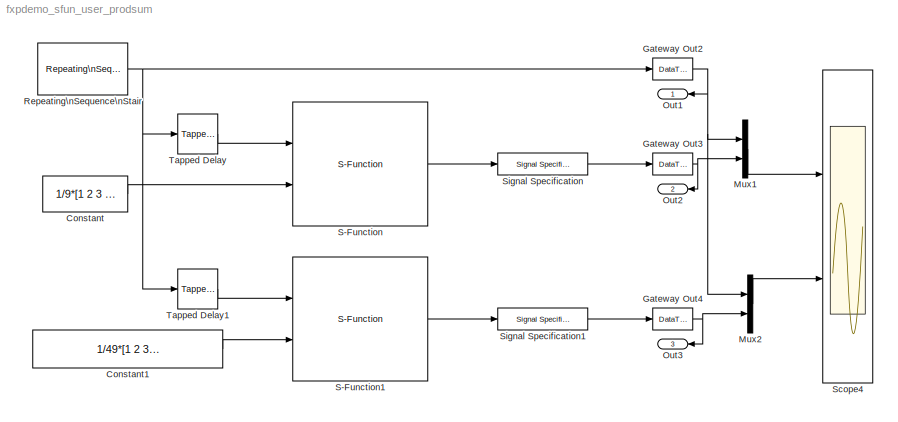
MODEL fxpdemo_sfun_user_prodsum
KIND model
CONFIG AbsTol = auto
CONFIG FixedStep = 0.001
CONFIG MaxStep = auto
CONFIG MinStep = auto
CONFIG RelTol = 1e-3
CONFIG Solver = FixedStepDiscrete
CONFIG SolverMode = Auto
CONFIG StartTime = 0.0
CONFIG StopTime = 0.2
BLOCK [Constant] Constant
  ConRadixGroup = Best Precision: Vector-wise
  OutDataTypeMode = Specify via dialog
  OutScaling = 2^-10
  ShowAdditionalParam = on
  Value = 1/9*[1 2 3 2 1]
BLOCK [Constant] Constant1
  OutDataTypeMode = Specify via dialog
  OutScaling = 2^-16
  ShowAdditionalParam = on
  Value = 1/49*[1 2 3 4 5 6 7 6 5 4 3 2 1]
BLOCK [DataTypeConversion] Gateway Out2
  DataType = double
  SaturateOnIntegerOverflow = off
BLOCK [DataTypeConversion] Gateway Out3
  DataType = double
  SaturateOnIntegerOverflow = off
BLOCK [DataTypeConversion] Gateway Out4
  DataType = double
  SaturateOnIntegerOverflow = off
BLOCK [Mux] Mux1
  DisplayOption = bar
  Inputs = 2
  Ports = [2, 1]
BLOCK [Mux] Mux2
  DisplayOption = bar
  Inputs = 2
  Ports = [2, 1]
BLOCK [Outport] Out1
BLOCK [Outport] Out2
  Port = 2
BLOCK [Outport] Out3
  Port = 3
BLOCK [Reference] Repeating\nSequence\nStair  REF=fixpt_lib_4/Sources/Repeating\nSequence\nStair  (lib defined in mdl_ef9dacb0d1df)
  ConRadixGroup = Best Precision: Vector-wise
  LockScale = off
  OutDataType = sfix(16)
  OutScaling = 2^-12
  OutValues = 5*sin(10*2*pi*(0:200)/200)
  OutputDataTypeScalingMode = Specify via dialog
  Ports = [0, 1]
  SourceBlock = fixpt_lib_4/Sources/Repeating\nSequence\nStair
  SourceType = Fixed-Point Repeating Sequence Stair
  tsamp = -1
BLOCK [S-Function] S-Function
  FunctionName = sfun_user_fxp_prodsum
  Ports = [2, 1]
BLOCK [S-Function] S-Function1
  FunctionName = sfun_user_fxp_prodsum
  Ports = [2, 1]
BLOCK [Scope] Scope4
  DataFormat = StructureWithTime
  LimitDataPoints = off
  NumInputPorts = 2
  Ports = [2]
  SaveName = ScopeData3
  TimeRange = 0.2
  YMax = 5~5
  YMin = -5~-5
BLOCK [Reference] Signal Specification  REF=simulink/Signal\nAttributes/Signal Specification
  D = -1
  DataType = Specify via dialog
  OutDataType = sfix(16)
  OutScaling = 2^-12
  Ports = [1, 1]
  SamplingMode = auto
  SignalType = auto
  SourceBlock = simulink/Signal\nAttributes/Signal Specification
  SourceType = Signal Specification
  Ts = -1
BLOCK [Reference] Signal Specification1  REF=simulink/Signal\nAttributes/Signal Specification
  D = -1
  DataType = Specify via dialog
  OutDataType = sfix(16)
  OutScaling = 2^-10
  Ports = [1, 1]
  SamplingMode = auto
  SignalType = auto
  SourceBlock = simulink/Signal\nAttributes/Signal Specification
  SourceType = Signal Specification
  Ts = -1
BLOCK [Reference] Tapped Delay  REF=fixpt_lib_4/Delays & Holds/Tapped Delay  (lib defined in mdl_ef9dacb0d1df)
  DelayOrder = Oldest
  NumDelays = 5
  Ports = [1, 1]
  SourceBlock = fixpt_lib_4/Delays & Holds/Tapped Delay
  SourceType = Fixed-Point Tapped Delay Line
  samptime = -1
  vinit = 0.0
BLOCK [Reference] Tapped Delay1  REF=fixpt_lib_4/Delays & Holds/Tapped Delay  (lib defined in mdl_ef9dacb0d1df)
  DelayOrder = Oldest
  NumDelays = 13
  Ports = [1, 1]
  SourceBlock = fixpt_lib_4/Delays & Holds/Tapped Delay
  SourceType = Fixed-Point Tapped Delay Line
  samptime = -1
  vinit = 0.0
LINE Constant1:1 -> S-Function1:2
LINE Constant:1 -> S-Function:2
NET Gateway Out2:1 -> Mux1:1, Mux2:1, Out1:1
NET Gateway Out3:1 -> Mux1:2, Out2:1
NET Gateway Out4:1 -> Mux2:2, Out3:1
LINE Mux1:1 -> Scope4:1
LINE Mux2:1 -> Scope4:2
NET Repeating\nSequence\nStair:1 -> Gateway Out2:1, Tapped Delay1:1, Tapped Delay:1
LINE S-Function1:1 -> Signal Specification1:1
LINE S-Function:1 -> Signal Specification:1
LINE Signal Specification1:1 -> Gateway Out4:1
LINE Signal Specification:1 -> Gateway Out3:1
LINE Tapped Delay1:1 -> S-Function1:1
LINE Tapped Delay:1 -> S-Function:1
note: NET lines group one-source signal fan-out (src -> all destinations, sorted); 1:1 wires keep LINE
